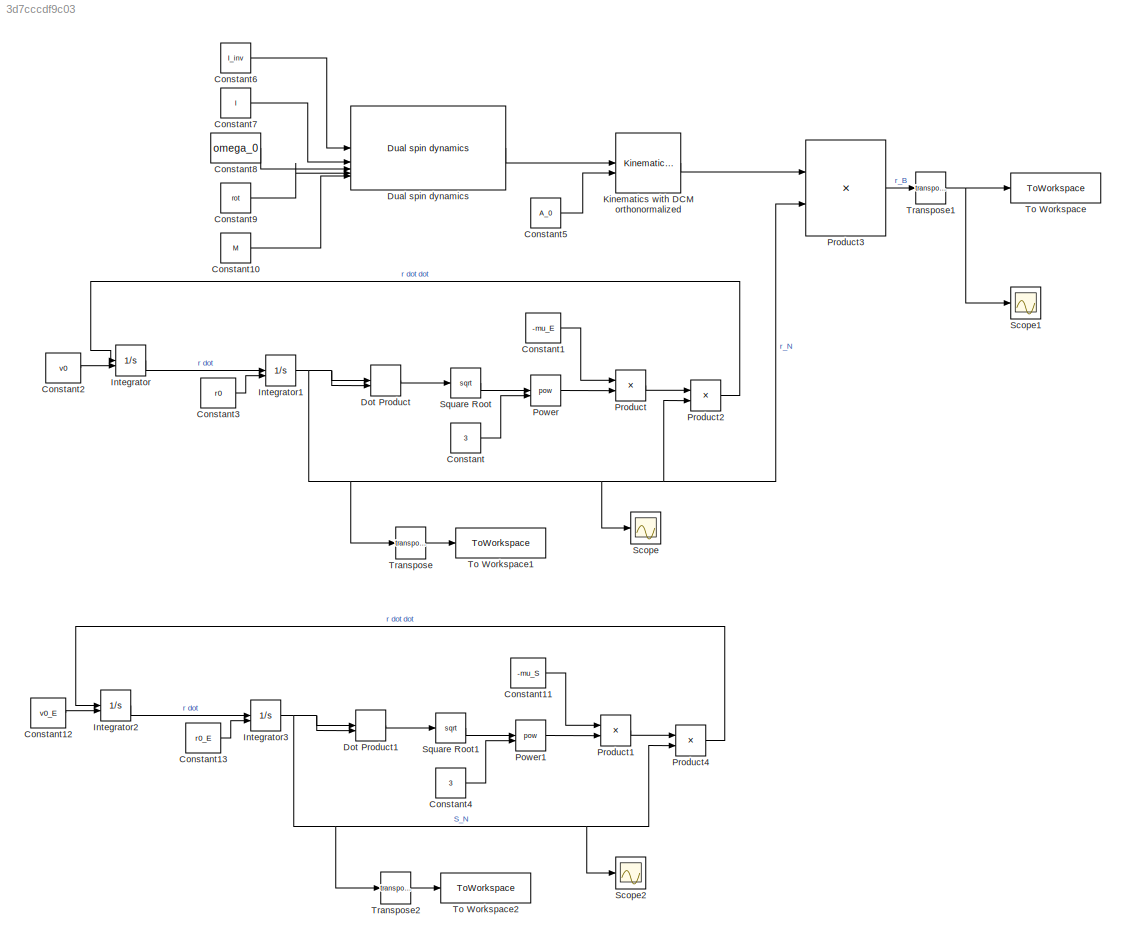
MODEL slx_3d7cccdf9c03
KIND model
CONFIG AbsTol = auto
CONFIG EnableMultiTasking = off
CONFIG FixedStep = 0.1
CONFIG MaxStep = auto
CONFIG MinStep = auto
CONFIG RelTol = 1e-3
CONFIG SampleTimeConstraint = Unconstrained
CONFIG SolverName = ode3
CONFIG StartTime = 0.0
CONFIG StopTime = T
BLOCK [Constant] Constant
  Value = 3
BLOCK [Constant] Constant1
  Value = -mu_E
  VectorParams1D = off
BLOCK [Constant] Constant10
  Value = M
  VectorParams1D = off
BLOCK [Constant] Constant11
  Value = -mu_S
  VectorParams1D = off
BLOCK [Constant] Constant12
  Value = v0_E
  VectorParams1D = off
BLOCK [Constant] Constant13
  Value = r0_E
  VectorParams1D = off
BLOCK [Constant] Constant2
  Value = v0
  VectorParams1D = off
BLOCK [Constant] Constant3
  Value = r0
  VectorParams1D = off
BLOCK [Constant] Constant4
  Value = 3
BLOCK [Constant] Constant5
  Value = A_0
  VectorParams1D = off
BLOCK [Constant] Constant6
  Value = I_inv
  VectorParams1D = off
BLOCK [Constant] Constant7
  Value = I
  VectorParams1D = off
BLOCK [Constant] Constant8
  Value = omega_0
  VectorParams1D = off
BLOCK [Constant] Constant9
  Value = rot
  VectorParams1D = off
BLOCK [DotProduct] Dot Product
  OutDataTypeStr = Inherit: Inherit via internal rule
BLOCK [DotProduct] Dot Product1
  OutDataTypeStr = Inherit: Inherit via internal rule
BLOCK [Reference] Dual spin dynamics  REF=LibrarySAD/Dual spin dynamics
  SourceBlock = LibrarySAD/Dual spin dynamics
  SourceType = SubSystem
BLOCK [Integrator] Integrator
  InitialConditionSource = external
BLOCK [Integrator] Integrator1
  InitialConditionSource = external
BLOCK [Integrator] Integrator2
  InitialConditionSource = external
BLOCK [Integrator] Integrator3
  InitialConditionSource = external
BLOCK [Reference] Kinematics with DCM orthonormalized  REF=LibrarySAD/Kinematics with DCM orthonormalized
  SourceBlock = LibrarySAD/Kinematics with DCM orthonormalized
  SourceType = SubSystem
BLOCK [Math] Power
  Operator = pow
BLOCK [Math] Power1
  Operator = pow
BLOCK [Product] Product
  Inputs = */
BLOCK [Product] Product1
  Inputs = */
BLOCK [Product] Product2
BLOCK [Product] Product3
  Multiplication = Matrix(*)
BLOCK [Product] Product4
BLOCK [Scope] Scope
  Floating = off
  NumInputPorts = 1
  ScopeSpecificationString = Simulink.scopes.TimeScopeBlockCfg('CurrentConfiguration', extmgr.ConfigurationSet(extmgr.Configuration('Core','General UI',true),extmgr.Configuration('Core','Source UI',true),extmgr.Configuration('Sources','WiredSimulink',true),extmgr.Configuration('Visuals','Time Domain',true,'SerializedDisplays',{struct('MinYLimReal','-52791892.40265','MaxYLimReal','8739072.12076','YLabelReal','','MinYLimMag',' ...<+1433ch>
BLOCK [Scope] Scope1
  Floating = off
  NumInputPorts = 1
  ScopeSpecificationString = Simulink.scopes.TimeScopeBlockCfg('CurrentConfiguration', extmgr.ConfigurationSet(extmgr.Configuration('Core','General UI',true),extmgr.Configuration('Core','Source UI',true),extmgr.Configuration('Sources','WiredSimulink',true,'DataLoggingVariableName','ScopeData1'),extmgr.Configuration('Visuals','Time Domain',true,'SerializedDisplays',{struct('MinYLimReal','-55554065.8301','MaxYLimReal','55300523...<+1493ch>
BLOCK [Scope] Scope2
  Floating = off
  NumInputPorts = 1
  ScopeSpecificationString = Simulink.scopes.TimeScopeBlockCfg('CurrentConfiguration', extmgr.ConfigurationSet(extmgr.Configuration('Core','General UI',true),extmgr.Configuration('Core','Source UI',true),extmgr.Configuration('Sources','WiredSimulink',true,'DataLoggingVariableName','ScopeData1'),extmgr.Configuration('Visuals','Time Domain',true,'SerializedDisplays',{struct('MinYLimReal','-52791892.40265','MaxYLimReal','8739072...<+1472ch>
BLOCK [Sqrt] Square Root
BLOCK [Sqrt] Square Root1
BLOCK [ToWorkspace] To Workspace
  FixptAsFi = on
  MaxDataPoints = inf
  SampleTime = -1
  Save2DSignal = 2-D array (concatenate along first dimension)
  VariableName = r_B
BLOCK [ToWorkspace] To Workspace1
  FixptAsFi = on
  MaxDataPoints = inf
  SampleTime = -1
  Save2DSignal = 2-D array (concatenate along first dimension)
  VariableName = r_N
BLOCK [ToWorkspace] To Workspace2
  FixptAsFi = on
  MaxDataPoints = inf
  SampleTime = -1
  Save2DSignal = 2-D array (concatenate along first dimension)
  VariableName = S_N
BLOCK [Math] Transpose
  Operator = transpose
BLOCK [Math] Transpose1
  Operator = transpose
BLOCK [Math] Transpose2
  Operator = transpose
LINE Constant10:1 -> Dual spin dynamics:5
LINE Constant11:1 -> Product1:1
LINE Constant12:1 -> Integrator2:2
LINE Constant13:1 -> Integrator3:2
LINE Constant1:1 -> Product:1
LINE Constant2:1 -> Integrator:2
LINE Constant3:1 -> Integrator1:2
LINE Constant4:1 -> Power1:2
LINE Constant5:1 -> Kinematics with DCM orthonormalized:2
LINE Constant6:1 -> Dual spin dynamics:1
LINE Constant7:1 -> Dual spin dynamics:2
LINE Constant8:1 -> Dual spin dynamics:3
LINE Constant9:1 -> Dual spin dynamics:4
LINE Constant:1 -> Power:2
LINE Dot Product1:1 -> Square Root1:1
LINE Dot Product:1 -> Square Root:1
LINE Dual spin dynamics:1 -> Kinematics with DCM orthonormalized:1
NET Integrator1:1 -> Dot Product:1, Dot Product:2, Product2:2, Product3:2, Scope:1, Transpose:1
LINE Integrator2:1 -> Integrator3:1
NET Integrator3:1 -> Dot Product1:1, Dot Product1:2, Product4:2, Scope2:1, Transpose2:1
LINE Integrator:1 -> Integrator1:1
LINE Kinematics with DCM orthonormalized:1 -> Product3:1
LINE Power1:1 -> Product1:2
LINE Power:1 -> Product:2
LINE Product1:1 -> Product4:1
LINE Product2:1 -> Integrator:1
LINE Product3:1 -> Transpose1:1
LINE Product4:1 -> Integrator2:1
LINE Product:1 -> Product2:1
LINE Square Root1:1 -> Power1:1
LINE Square Root:1 -> Power:1
NET Transpose1:1 -> Scope1:1, To Workspace:1
LINE Transpose2:1 -> To Workspace2:1
LINE Transpose:1 -> To Workspace1:1
note: NET lines group one-source signal fan-out (src -> all destinations, sorted); 1:1 wires keep LINE
